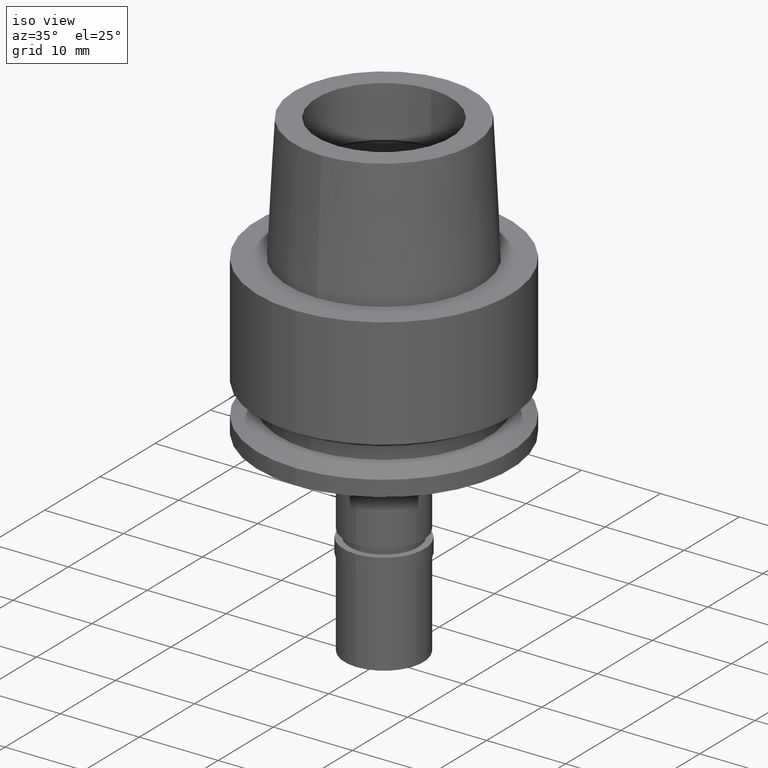
[diagram: clean part render]
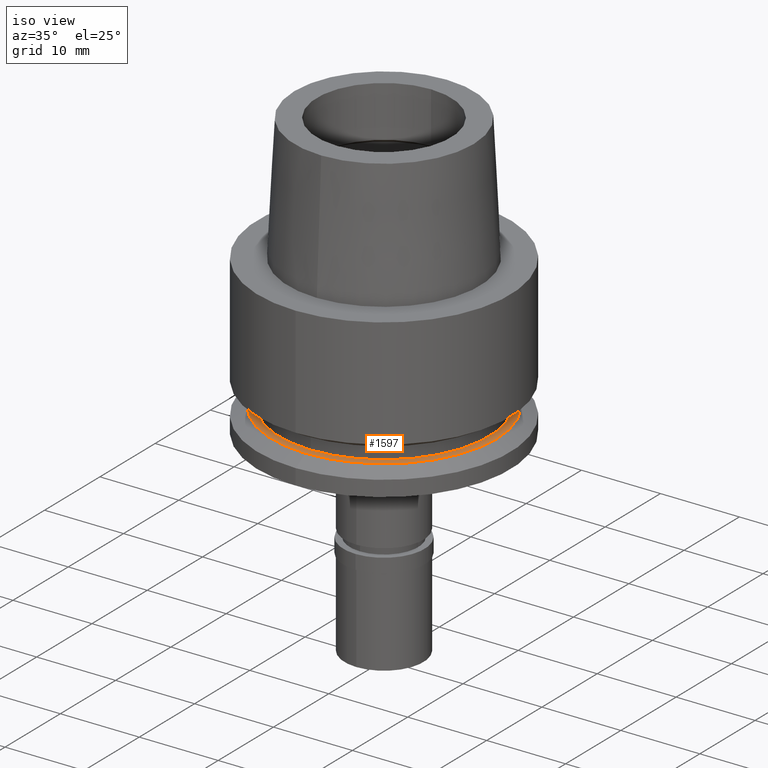
[diagram: same view with one face highlighted and labeled with its STEP entity id]
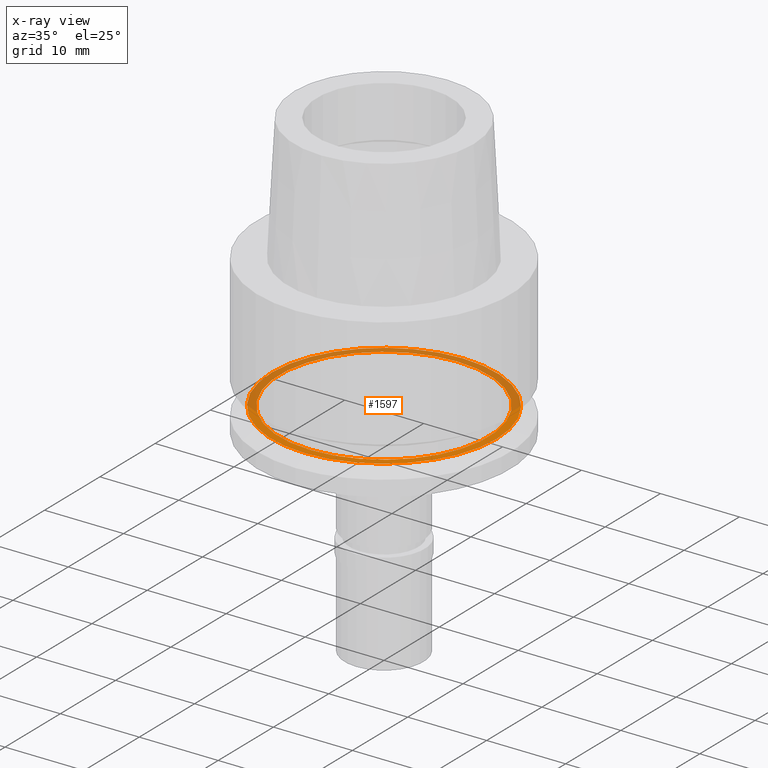
[diagram: x-ray of the same camera — body ghosted, the highlighted face saturated]
A machine part, iso view. The second image highlights one B-rep face of the part: STEP entity #1597.
The next image is the same camera in x-ray: the body ghosted, the highlighted face saturated — about 52% of this face is hidden behind the body in this view.
In plain terms, the highlighted planar face has unit normal (0, 0, 1).
Its self-contained STEP definition (entity closure, byte-faithful):
#45 = ORIENTED_EDGE ( 'NONE', *, *, #2459, .F. ) ;
#141 = CIRCLE ( 'NONE', #2146, 13.25000000000000000 ) ;
#200 = AXIS2_PLACEMENT_3D ( 'NONE', #911, #323, #1311 ) ;
#203 = CIRCLE ( 'NONE', #2466, 14.23205080756999941 ) ;
#246 = ORIENTED_EDGE ( 'NONE', *, *, #1540, .F. ) ;
#302 = VERTEX_POINT ( 'NONE', #1129 ) ;
#323 = DIRECTION ( 'NONE',  ( 0.0000000000000000000, 0.0000000000000000000, -1.000000000000000000 ) ) ;
#353 = DIRECTION ( 'NONE',  ( 0.0000000000000000000, -1.000000000000000000, 0.0000000000000000000 ) ) ;
#370 = DIRECTION ( 'NONE',  ( 0.0000000000000000000, -1.000000000000000000, 0.0000000000000000000 ) ) ;
#497 = CARTESIAN_POINT ( 'NONE',  ( 0.0000000000000000000, -13.25000000000000000, -17.00000000000000000 ) ) ;
#531 = EDGE_LOOP ( 'NONE', ( #2386, #246 ) ) ;
#551 = DIRECTION ( 'NONE',  ( 0.0000000000000000000, 0.0000000000000000000, -1.000000000000000000 ) ) ;
#697 = VERTEX_POINT ( 'NONE', #2308 ) ;
#763 = CARTESIAN_POINT ( 'NONE',  ( 0.0000000000000000000, 0.0000000000000000000, -17.00000000000000000 ) ) ;
#911 = CARTESIAN_POINT ( 'NONE',  ( 0.0000000000000000000, 0.0000000000000000000, -17.00000000000000000 ) ) ;
#984 = CIRCLE ( 'NONE', #200, 14.23205080756999941 ) ;
#1129 = CARTESIAN_POINT ( 'NONE',  ( 0.0000000000000000000, 13.25000000000000000, -17.00000000000000000 ) ) ;
#1159 = EDGE_LOOP ( 'NONE', ( #45, #2610 ) ) ;
#1311 = DIRECTION ( 'NONE',  ( 0.0000000000000000000, 1.000000000000000000, 0.0000000000000000000 ) ) ;
#1323 = AXIS2_PLACEMENT_3D ( 'NONE', #2484, #2025, #1648 ) ;
#1425 = DIRECTION ( 'NONE',  ( 0.0000000000000000000, 0.0000000000000000000, 1.000000000000000000 ) ) ;
#1540 = EDGE_CURVE ( 'NONE', #2455, #302, #141, .T. ) ;
#1560 = CIRCLE ( 'NONE', #1903, 13.25000000000000000 ) ;
#1597 = ADVANCED_FACE ( 'NONE', ( #2671, #2650 ), #1660, .T. ) ;
#1648 = DIRECTION ( 'NONE',  ( 1.000000000000000000, 0.0000000000000000000, 0.0000000000000000000 ) ) ;
#1660 = PLANE ( 'NONE',  #1323 ) ;
#1775 = VERTEX_POINT ( 'NONE', #1888 ) ;
#1888 = CARTESIAN_POINT ( 'NONE',  ( 0.0000000000000000000, 14.23205080756999941, -17.00000000000000000 ) ) ;
#1903 = AXIS2_PLACEMENT_3D ( 'NONE', #1966, #2010, #2590 ) ;
#1966 = CARTESIAN_POINT ( 'NONE',  ( 0.0000000000000000000, 0.0000000000000000000, -17.00000000000000000 ) ) ;
#2010 = DIRECTION ( 'NONE',  ( 0.0000000000000000000, 0.0000000000000000000, 1.000000000000000000 ) ) ;
#2025 = DIRECTION ( 'NONE',  ( 0.0000000000000000000, 0.0000000000000000000, 1.000000000000000000 ) ) ;
#2145 = EDGE_CURVE ( 'NONE', #697, #1775, #203, .T. ) ;
#2146 = AXIS2_PLACEMENT_3D ( 'NONE', #2237, #1425, #370 ) ;
#2194 = EDGE_CURVE ( 'NONE', #302, #2455, #1560, .T. ) ;
#2237 = CARTESIAN_POINT ( 'NONE',  ( 0.0000000000000000000, 0.0000000000000000000, -17.00000000000000000 ) ) ;
#2308 = CARTESIAN_POINT ( 'NONE',  ( 0.0000000000000000000, -14.23205080756999941, -17.00000000000000000 ) ) ;
#2386 = ORIENTED_EDGE ( 'NONE', *, *, #2194, .F. ) ;
#2455 = VERTEX_POINT ( 'NONE', #497 ) ;
#2459 = EDGE_CURVE ( 'NONE', #1775, #697, #984, .T. ) ;
#2466 = AXIS2_PLACEMENT_3D ( 'NONE', #763, #551, #353 ) ;
#2484 = CARTESIAN_POINT ( 'NONE',  ( 0.0000000000000000000, 0.0000000000000000000, -17.00000000000000000 ) ) ;
#2590 = DIRECTION ( 'NONE',  ( 0.0000000000000000000, 1.000000000000000000, 0.0000000000000000000 ) ) ;
#2610 = ORIENTED_EDGE ( 'NONE', *, *, #2145, .F. ) ;
#2650 = FACE_BOUND ( 'NONE', #531, .T. ) ;
#2671 = FACE_OUTER_BOUND ( 'NONE', #1159, .T. ) ;